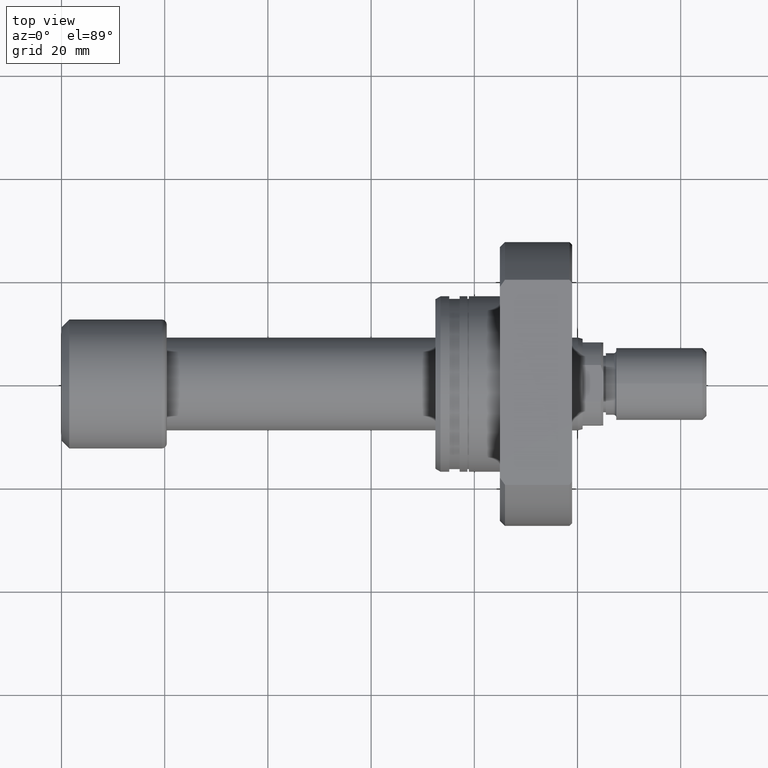
[diagram: clean part render]
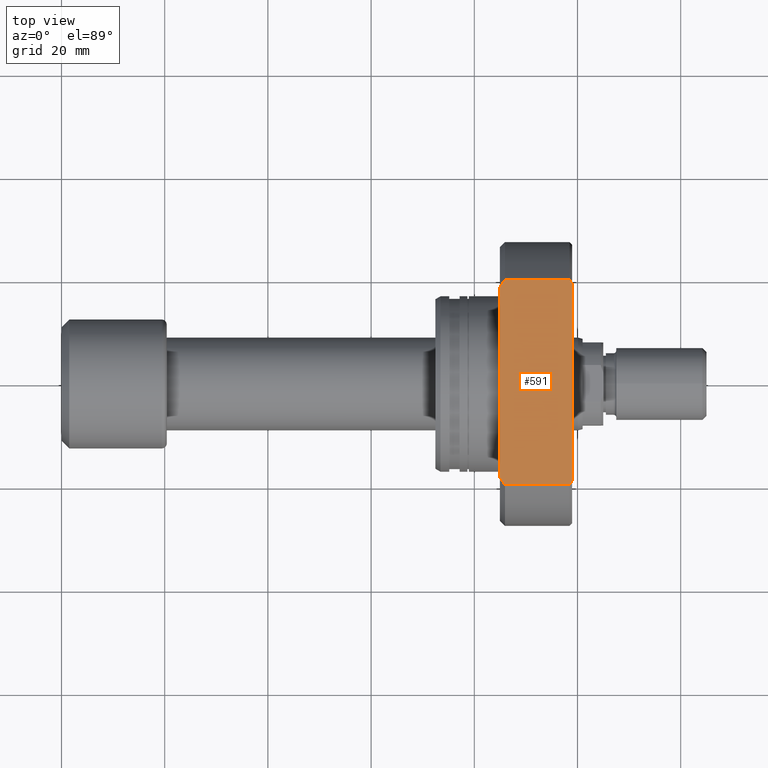
[diagram: same view with one face highlighted and labeled with its STEP entity id]
A machine part, top view. The second image highlights one B-rep face of the part: STEP entity #591.
In plain terms, the highlighted planar face has unit normal (0, 0, 1).
Its self-contained STEP definition (entity closure, byte-faithful):
#15 = ORIENTED_EDGE ( 'NONE', *, *, #655, .T. ) ;
#84 = CARTESIAN_POINT ( 'NONE',  ( -2.151057110211240797E-13, 19.88089535207168623, 19.00000000000001066 ) ) ;
#116 = ORIENTED_EDGE ( 'NONE', *, *, #1439, .F. ) ;
#144 = CARTESIAN_POINT ( 'NONE',  ( 26.33435831467464538, 19.41646217622441029, 19.00000000000001066 ) ) ;
#168 = EDGE_CURVE ( 'NONE', #474, #1747, #1590, .T. ) ;
#269 = CARTESIAN_POINT ( 'NONE',  ( 26.16766778152496187, 19.64897098899368899, 19.00000000000001066 ) ) ;
#280 = VERTEX_POINT ( 'NONE', #847 ) ;
#290 = VERTEX_POINT ( 'NONE', #3483 ) ;
#369 = CARTESIAN_POINT ( 'NONE',  ( 26.33429591812845061, -19.41654999763447620, 19.00000000000001066 ) ) ;
#421 = PLANE ( 'NONE',  #2700 ) ;
#448 = VECTOR ( 'NONE', #1584, 1000.000000000000000 ) ;
#457 = LINE ( 'NONE', #3000, #448 ) ;
#474 = VERTEX_POINT ( 'NONE', #3669 ) ;
#495 = B_SPLINE_CURVE_WITH_KNOTS ( 'NONE', 3,
 ( #1000, #698, #1810, #2977 ),
 .UNSPECIFIED., .F., .F.,
 ( 4, 4 ),
 ( 0.03128279945209438972, 0.03301205973984312758 ),
 .UNSPECIFIED. ) ;
#586 = CARTESIAN_POINT ( 'NONE',  ( 13.49999999999998757, 19.88089535207129188, 19.00000000000000355 ) ) ;
#591 = ADVANCED_FACE ( 'NONE', ( #3470 ), #421, .T. ) ;
#655 = EDGE_CURVE ( 'NONE', #1747, #3469, #2043, .T. ) ;
#698 = CARTESIAN_POINT ( 'NONE',  ( 13.16276636410033873, 19.41442114037127453, 19.00000000000001066 ) ) ;
#737 = CARTESIAN_POINT ( 'NONE',  ( 26.00000000000007461, 19.88089535207092950, 19.00000000000000355 ) ) ;
#779 = DIRECTION ( 'NONE',  ( -0.000000000000000000, 1.000000000000000000, 0.000000000000000000 ) ) ;
#815 = LINE ( 'NONE', #833, #953 ) ;
#833 = CARTESIAN_POINT ( 'NONE',  ( -2.151057110211240797E-13, 19.88089535207167913, 19.00000000000000355 ) ) ;
#847 = CARTESIAN_POINT ( 'NONE',  ( 12.50000000000000355, 18.47295320191106072, 19.00000000000001066 ) ) ;
#953 = VECTOR ( 'NONE', #1607, 1000.000000000000000 ) ;
#984 = CARTESIAN_POINT ( 'NONE',  ( 26.50000000000000355, -19.18332609325086224, 19.00000000000000711 ) ) ;
#1000 = CARTESIAN_POINT ( 'NONE',  ( 13.49999999999998757, 19.88089535207129188, 19.00000000000000355 ) ) ;
#1016 = EDGE_CURVE ( 'NONE', #290, #1668, #1096, .T. ) ;
#1096 = B_SPLINE_CURVE_WITH_KNOTS ( 'NONE', 3,
 ( #2219, #144, #269, #737 ),
 .UNSPECIFIED., .F., .F.,
 ( 4, 4 ),
 ( 0.07446973138748344545, 0.07533421896860403866 ),
 .UNSPECIFIED. ) ;
#1181 = CARTESIAN_POINT ( 'NONE',  ( 26.00000000000007461, -19.88089535207091885, 19.00000000000001421 ) ) ;
#1206 = EDGE_CURVE ( 'NONE', #3438, #474, #3437, .T. ) ;
#1272 = VECTOR ( 'NONE', #1876, 1000.000000000000000 ) ;
#1305 = ORIENTED_EDGE ( 'NONE', *, *, #2861, .T. ) ;
#1402 = ORIENTED_EDGE ( 'NONE', *, *, #2816, .T. ) ;
#1405 = ORIENTED_EDGE ( 'NONE', *, *, #2725, .T. ) ;
#1439 = EDGE_CURVE ( 'NONE', #3322, #1668, #815, .T. ) ;
#1497 = CARTESIAN_POINT ( 'NONE',  ( 12.82897297353833999, -18.94487470268462914, 19.00000000000001066 ) ) ;
#1584 = DIRECTION ( 'NONE',  ( 9.242617352055502386E-18, -1.000000000000000000, 0.000000000000000000 ) ) ;
#1590 = LINE ( 'NONE', #2438, #1272 ) ;
#1607 = DIRECTION ( 'NONE',  ( 1.000000000000000000, -2.886466111666351885E-14, -0.000000000000000000 ) ) ;
#1642 = LINE ( 'NONE', #3328, #2761 ) ;
#1668 = VERTEX_POINT ( 'NONE', #3171 ) ;
#1747 = VERTEX_POINT ( 'NONE', #1181 ) ;
#1810 = CARTESIAN_POINT ( 'NONE',  ( 12.82923531929442262, 18.94525104546319128, 19.00000000000001066 ) ) ;
#1814 = ORIENTED_EDGE ( 'NONE', *, *, #1016, .T. ) ;
#1829 = DIRECTION ( 'NONE',  ( 0.000000000000000000, 0.000000000000000000, 1.000000000000000000 ) ) ;
#1876 = DIRECTION ( 'NONE',  ( 1.000000000000000000, -2.886466111666351885E-14, -0.000000000000000000 ) ) ;
#2030 = CARTESIAN_POINT ( 'NONE',  ( 12.50000000000000355, -18.47295320191106072, 19.00000000000001066 ) ) ;
#2040 = CARTESIAN_POINT ( 'NONE',  ( 12.50000000000000355, -18.47295320191106072, 19.00000000000001066 ) ) ;
#2043 = B_SPLINE_CURVE_WITH_KNOTS ( 'NONE', 3,
 ( #2685, #3187, #369, #984 ),
 .UNSPECIFIED., .F., .F.,
 ( 4, 4 ),
 ( 0.03127512062948595295, 0.03213456893170307110 ),
 .UNSPECIFIED. ) ;
#2219 = CARTESIAN_POINT ( 'NONE',  ( 26.50000000000000355, 19.18332609325086935, 19.00000000000000711 ) ) ;
#2247 = EDGE_LOOP ( 'NONE', ( #1405, #1305, #3007, #2311, #15, #1402, #1814, #116 ) ) ;
#2311 = ORIENTED_EDGE ( 'NONE', *, *, #168, .T. ) ;
#2438 = CARTESIAN_POINT ( 'NONE',  ( -1.360023205165816762E-12, -19.88089535207016922, 19.00000000000001421 ) ) ;
#2643 = CARTESIAN_POINT ( 'NONE',  ( 13.49999999999998757, -19.88089535207056002, 19.00000000000001421 ) ) ;
#2685 = CARTESIAN_POINT ( 'NONE',  ( 26.00000000000007461, -19.88089535207091885, 19.00000000000001421 ) ) ;
#2700 = AXIS2_PLACEMENT_3D ( 'NONE', #84, #1829, #3509 ) ;
#2725 = EDGE_CURVE ( 'NONE', #3322, #280, #495, .T. ) ;
#2761 = VECTOR ( 'NONE', #779, 1000.000000000000000 ) ;
#2816 = EDGE_CURVE ( 'NONE', #3469, #290, #1642, .T. ) ;
#2861 = EDGE_CURVE ( 'NONE', #280, #3438, #457, .T. ) ;
#2977 = CARTESIAN_POINT ( 'NONE',  ( 12.50000000000000355, 18.47295320191106072, 19.00000000000001066 ) ) ;
#3000 = CARTESIAN_POINT ( 'NONE',  ( 12.50000000000000355, -16.99999999999999645, 19.00000000000001066 ) ) ;
#3007 = ORIENTED_EDGE ( 'NONE', *, *, #1206, .T. ) ;
#3171 = CARTESIAN_POINT ( 'NONE',  ( 26.00000000000007461, 19.88089535207092950, 19.00000000000000355 ) ) ;
#3182 = CARTESIAN_POINT ( 'NONE',  ( 13.16251021117672160, -19.41406682004138773, 19.00000000000001066 ) ) ;
#3187 = CARTESIAN_POINT ( 'NONE',  ( 26.16760613831981885, -19.64905625618670726, 19.00000000000001066 ) ) ;
#3322 = VERTEX_POINT ( 'NONE', #586 ) ;
#3328 = CARTESIAN_POINT ( 'NONE',  ( 26.50000000000000355, 19.88089535207168623, 19.00000000000001066 ) ) ;
#3437 = B_SPLINE_CURVE_WITH_KNOTS ( 'NONE', 3,
 ( #2030, #1497, #3182, #2643 ),
 .UNSPECIFIED., .F., .F.,
 ( 4, 4 ),
 ( 0.07360185391654980314, 0.07534192973589427800 ),
 .UNSPECIFIED. ) ;
#3438 = VERTEX_POINT ( 'NONE', #2040 ) ;
#3457 = CARTESIAN_POINT ( 'NONE',  ( 26.50000000000000355, -19.18332609325086224, 19.00000000000000711 ) ) ;
#3469 = VERTEX_POINT ( 'NONE', #3457 ) ;
#3470 = FACE_OUTER_BOUND ( 'NONE', #2247, .T. ) ;
#3483 = CARTESIAN_POINT ( 'NONE',  ( 26.50000000000000355, 19.18332609325086935, 19.00000000000000711 ) ) ;
#3509 = DIRECTION ( 'NONE',  ( 1.000000000000000000, 0.000000000000000000, -0.000000000000000000 ) ) ;
#3669 = CARTESIAN_POINT ( 'NONE',  ( 13.49999999999998757, -19.88089535207056002, 19.00000000000001421 ) ) ;